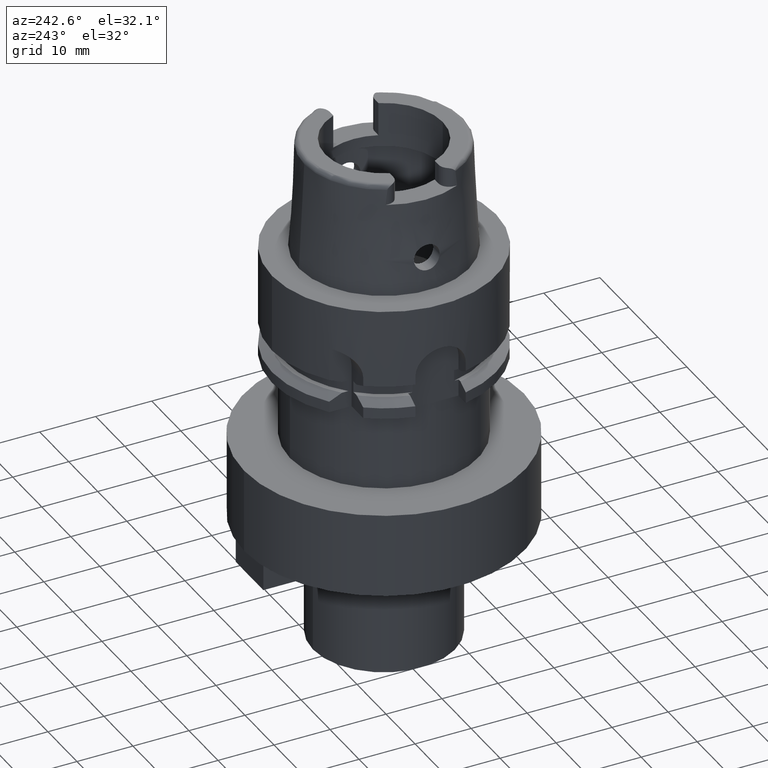
[diagram: clean part render]
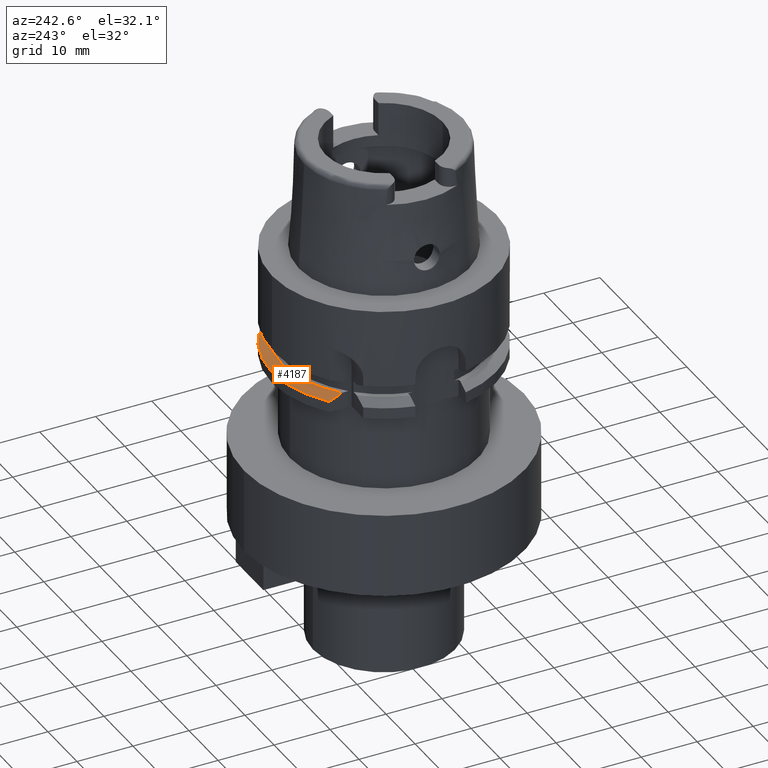
[diagram: same view with one face highlighted and labeled with its STEP entity id]
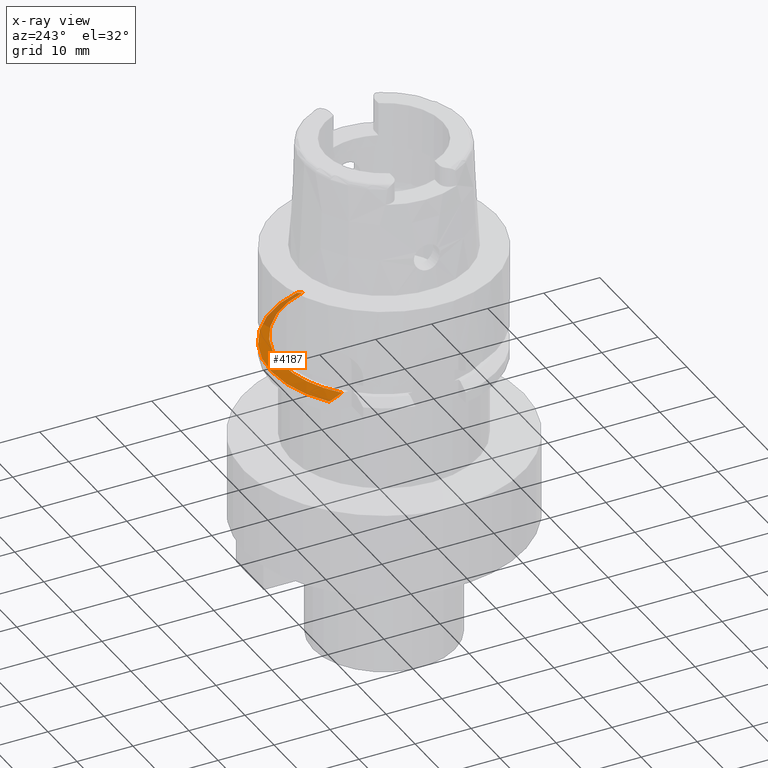
[diagram: x-ray of the same camera — body ghosted, the highlighted face saturated]
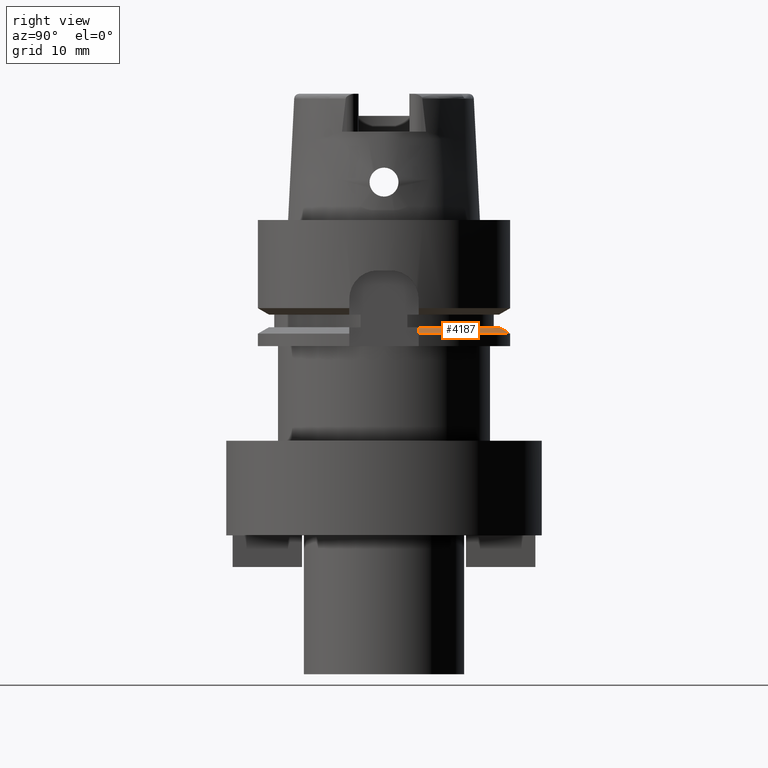
[diagram: same view with one face highlighted and labeled with its STEP entity id]
A machine part, auxiliary view. The second image highlights one B-rep face of the part: STEP entity #4187.
The next image is the same camera in x-ray: the body ghosted, the highlighted face saturated — about 15% of this face is hidden behind the body in this view.
A second angle (right view) of the same face is appended — the face is thin or edge-on in the first view.
In plain terms, the highlighted conical surface has half-angle 60 deg.
Its self-contained STEP definition (entity closure, byte-faithful):
#1320=CARTESIAN_POINT('',(1.738268111400E1,5.500000149363E0,-1.7E1));
#1321=CARTESIAN_POINT('',(1.758802773522E1,5.500000149363E0,-1.711303377298E1));
#1322=CARTESIAN_POINT('',(1.799855258165E1,5.499999994651E0,-1.733939205883E1));
#1323=CARTESIAN_POINT('',(1.861396382610E1,5.499999794678E0,-1.767961824789E1));
#1324=CARTESIAN_POINT('',(1.902394029866E1,5.500000482651E0,-1.790696755951E1));
#1325=CARTESIAN_POINT('',(1.922888438498E1,5.500000482651E0,-1.802072998690E1));
#1678=CARTESIAN_POINT('',(0.E0,0.E0,-1.7E1));
#1679=DIRECTION('',(0.E0,0.E0,-1.E0));
#1680=DIRECTION('',(-6.581815796069E-1,7.528592220768E-1,0.E0));
#1681=AXIS2_PLACEMENT_3D('',#1678,#1679,#1680);
#1686=CARTESIAN_POINT('',(0.E0,0.E0,-1.7E1));
#1687=DIRECTION('',(0.E0,0.E0,-1.E0));
#1688=DIRECTION('',(0.E0,1.E0,0.E0));
#1689=AXIS2_PLACEMENT_3D('',#1686,#1687,#1688);
#1717=CARTESIAN_POINT('',(-1.200000248716E1,1.372614522429E1,-1.7E1));
#1718=CARTESIAN_POINT('',(-1.200000248716E1,1.397238900163E1,
-1.710703312497E1));
#1719=CARTESIAN_POINT('',(-1.199999995560E1,1.446906387050E1,
-1.732541886644E1));
#1720=CARTESIAN_POINT('',(-1.199999642467E1,1.522701378662E1,
-1.766574512506E1));
#1721=CARTESIAN_POINT('',(-1.200000837203E1,1.574085557201E1,
-1.790106709127E1));
#1722=CARTESIAN_POINT('',(-1.200000837203E1,1.599999372097E1,
-1.802075773440E1));
#1727=CARTESIAN_POINT('',(0.E0,0.E0,-1.802072594216E1));
#1728=DIRECTION('',(0.E0,0.E0,-1.E0));
#1729=DIRECTION('',(-6.E-1,8.E-1,0.E0));
#1730=AXIS2_PLACEMENT_3D('',#1727,#1728,#1729);
#1735=CARTESIAN_POINT('',(0.E0,0.E0,-1.802072594216E1));
#1736=DIRECTION('',(0.E0,0.E0,-1.E0));
#1737=DIRECTION('',(0.E0,1.E0,0.E0));
#1738=AXIS2_PLACEMENT_3D('',#1735,#1736,#1737);
#2737=CARTESIAN_POINT('',(-1.200000837203E1,1.599999372097E1,
-1.802075773440E1));
#2738=VERTEX_POINT('',#2737);
#2739=VERTEX_POINT('',#1717);
#2757=CARTESIAN_POINT('',(1.922888438498E1,5.500000482651E0,-1.802072998690E1));
#2758=VERTEX_POINT('',#2757);
#2759=CARTESIAN_POINT('',(0.E0,2.E1,-1.802072594216E1));
#2760=VERTEX_POINT('',#2759);
#2805=VERTEX_POINT('',#1320);
#2806=CARTESIAN_POINT('',(0.E0,1.823205080757E1,-1.7E1));
#2807=VERTEX_POINT('',#2806);
#4174=CARTESIAN_POINT('',(0.E0,0.E0,-1.751036297108E1));
#4175=DIRECTION('',(0.E0,0.E0,-1.E0));
#4176=DIRECTION('',(0.E0,-1.E0,0.E0));
#4177=AXIS2_PLACEMENT_3D('',#4174,#4175,#4176);
#4178=CONICAL_SURFACE('',#4177,1.911602540378E1,6.E1);
#4179=ORIENTED_EDGE('',*,*,#3842,.T.);
#4180=ORIENTED_EDGE('',*,*,#3873,.T.);
#4181=ORIENTED_EDGE('',*,*,#3871,.T.);
#4182=ORIENTED_EDGE('',*,*,#3888,.F.);
#4183=ORIENTED_EDGE('',*,*,#4165,.F.);
#4184=ORIENTED_EDGE('',*,*,#4163,.F.);
#4185=EDGE_LOOP('',(#4179,#4180,#4181,#4182,#4183,#4184));
#4186=FACE_OUTER_BOUND('',#4185,.F.);
#1326=B_SPLINE_CURVE_WITH_KNOTS('',3,(#1320,#1321,#1322,#1323,#1324,#1325),
.UNSPECIFIED.,.F.,.F.,(4,1,1,4),(0.E0,3.333333333333E-1,6.666666666667E-1,1.E0),
.UNSPECIFIED.);
#1682=CIRCLE('',#1681,1.823205080757E1);
#1690=CIRCLE('',#1689,1.823205080757E1);
#1723=B_SPLINE_CURVE_WITH_KNOTS('',3,(#1717,#1718,#1719,#1720,#1721,#1722),
.UNSPECIFIED.,.F.,.F.,(4,1,1,4),(0.E0,3.333333333333E-1,6.666666666667E-1,1.E0),
.UNSPECIFIED.);
#1731=CIRCLE('',#1730,2.E1);
#1739=CIRCLE('',#1738,2.E1);
#3842=EDGE_CURVE('',#2739,#2738,#1723,.T.);
#3871=EDGE_CURVE('',#2760,#2758,#1739,.T.);
#3873=EDGE_CURVE('',#2738,#2760,#1731,.T.);
#3888=EDGE_CURVE('',#2805,#2758,#1326,.T.);
#4163=EDGE_CURVE('',#2739,#2807,#1682,.T.);
#4165=EDGE_CURVE('',#2807,#2805,#1690,.T.);
#4187=ADVANCED_FACE('',(#4186),#4178,.T.);